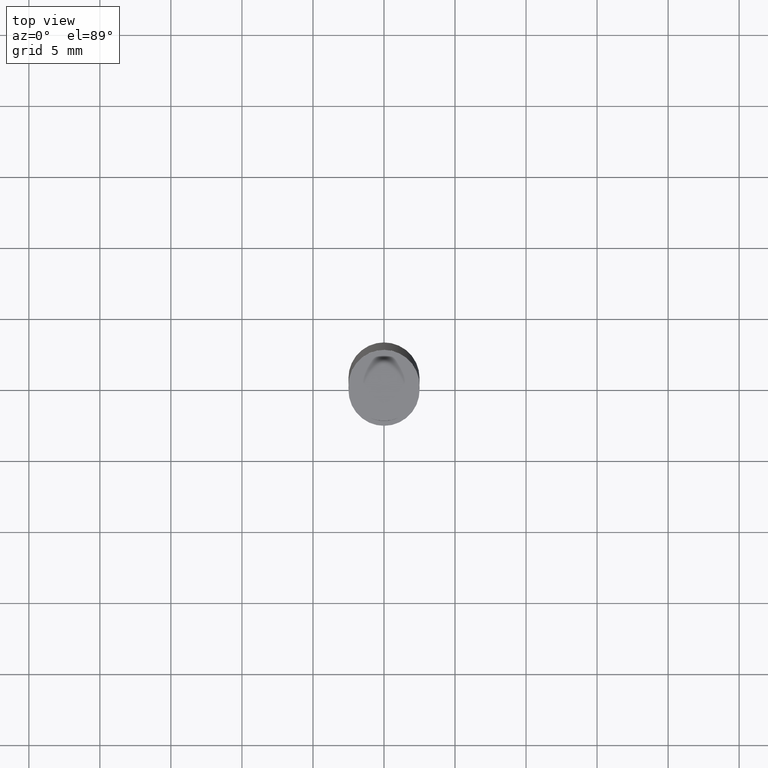
[diagram: clean part render]
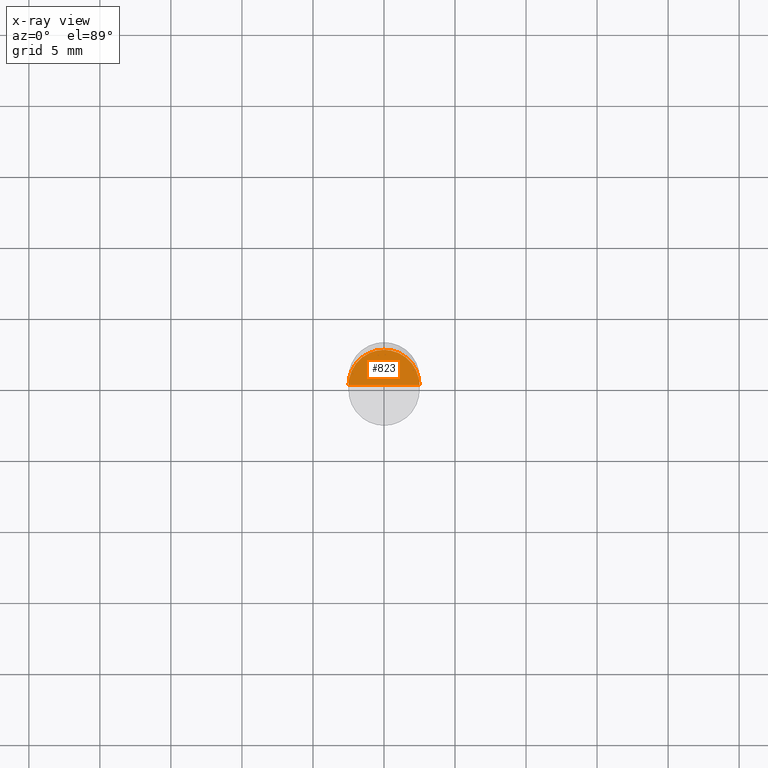
[diagram: x-ray — body ghosted, one internal face saturated and labeled with its STEP entity id]
A machine part, top view, then the same camera in x-ray: the body is ghosted and one INTERNAL B-rep face — a face not visible from any outside direction — is saturated and labeled: STEP entity #823.
In plain terms, the highlighted face is a freeform B-spline surface patch.
Its self-contained STEP definition (entity closure, byte-faithful):
#667=CARTESIAN_POINT('',(2.5,0.0,0.0));
#668=CARTESIAN_POINT('',(2.5,2.5,0.0));
#669=CARTESIAN_POINT('',(0.0,2.5,0.0));
#670=CARTESIAN_POINT('',(-2.5,2.5,0.0));
#671=CARTESIAN_POINT('',(-2.5,0.0,0.0));
#672=CARTESIAN_POINT('',(0.0,0.0,0.0));
#808=(
BOUNDED_SURFACE()
B_SPLINE_SURFACE(1,2,(
(#672,#672,#672,#672,#672),
(#667,#668,#669,#670,#671)
), .UNSPECIFIED.,.F.,.F.,.F.)
B_SPLINE_SURFACE_WITH_KNOTS((2,2),(3,2,3),(
0.0,1.0),(
0.0,0.5,1.0), .UNSPECIFIED.)
GEOMETRIC_REPRESENTATION_ITEM()
RATIONAL_B_SPLINE_SURFACE(((1.0,0.707106781187,1.0,0.707106781187,1.0),
(1.0,0.707106781187,1.0,0.707106781187,1.0)
))
REPRESENTATION_ITEM('')
SURFACE()
);
#809=(
BOUNDED_CURVE()
B_SPLINE_CURVE(1,(#671,#672),.UNSPECIFIED.,.F.,.F.)
B_SPLINE_CURVE_WITH_KNOTS((2,2),
(0.0,1.0),.UNSPECIFIED.)
CURVE()
GEOMETRIC_REPRESENTATION_ITEM()
RATIONAL_B_SPLINE_CURVE((1.0,1.0))
REPRESENTATION_ITEM('')
);
#810=(
BOUNDED_CURVE()
B_SPLINE_CURVE(1,(#672,#667),.UNSPECIFIED.,.F.,.F.)
B_SPLINE_CURVE_WITH_KNOTS((2,2),
(0.0,1.0),.UNSPECIFIED.)
CURVE()
GEOMETRIC_REPRESENTATION_ITEM()
RATIONAL_B_SPLINE_CURVE((1.0,1.0))
REPRESENTATION_ITEM('')
);
#811=(
BOUNDED_CURVE()
B_SPLINE_CURVE(2,(#667,#668,#669,#670,#671),.UNSPECIFIED.,.F.,.F.)
B_SPLINE_CURVE_WITH_KNOTS((3,2,3),
(0.0,0.5,1.0),.UNSPECIFIED.)
CURVE()
GEOMETRIC_REPRESENTATION_ITEM()
RATIONAL_B_SPLINE_CURVE((1.0,0.707106781187,1.0,0.707106781187,1.0))
REPRESENTATION_ITEM('')
);
#812=VERTEX_POINT('',#667);
#813=VERTEX_POINT('',#671);
#814=VERTEX_POINT('',#672);
#815=EDGE_CURVE('',#813,#814,#809,.T.);
#816=EDGE_CURVE('',#814,#812,#810,.T.);
#817=EDGE_CURVE('',#812,#813,#811,.T.);
#818=ORIENTED_EDGE('',*,*,#815,.T.);
#819=ORIENTED_EDGE('',*,*,#816,.T.);
#820=ORIENTED_EDGE('',*,*,#817,.T.);
#821=EDGE_LOOP('',(#818,#819,#820));
#822=FACE_OUTER_BOUND('',#821,.T.);
#823=ADVANCED_FACE('',(#822),#808,.T.);